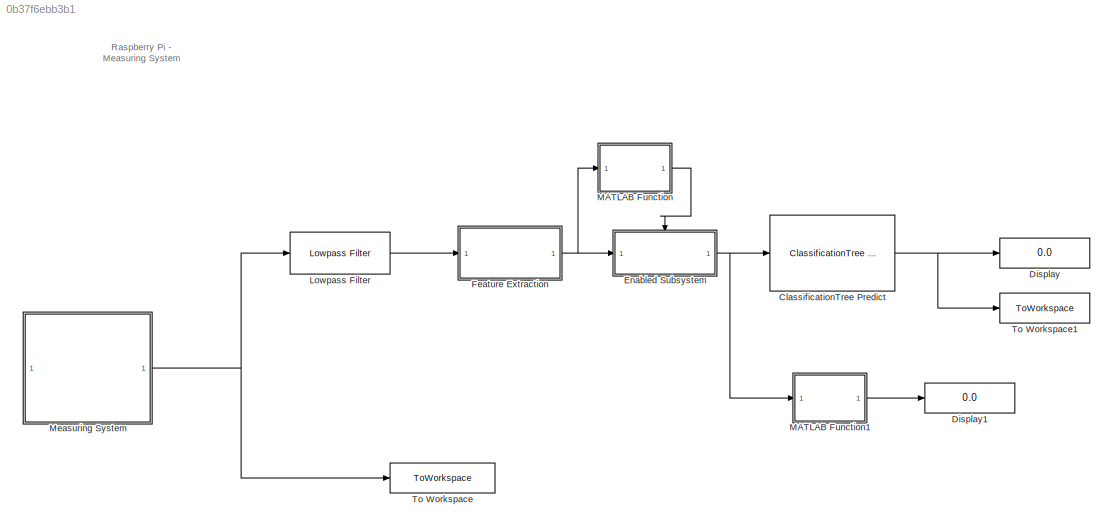
MODEL slx_0b37f6ebb3b1
KIND model
CONFIG AbsTol = auto
CONFIG EnableMultiTasking = on
CONFIG FixedStep = Ts
CONFIG MaxStep = auto
CONFIG MinStep = auto
CONFIG RelTol = 1e-3
CONFIG SampleTimeConstraint = Unconstrained
CONFIG SolverName = FixedStepAuto
CONFIG StartTime = 0.0
CONFIG StopTime = 120
BLOCK [Reference] ClassificationTree Predict  REF=statsLibrary/Classification/ClassificationTree Predict
  SourceBlock = statsLibrary/Classification/ClassificationTree Predict
  SourceType = ClassificationTree Predict
BLOCK [Display] Display
  Decimation = 1
BLOCK [Display] Display1
  Decimation = 1
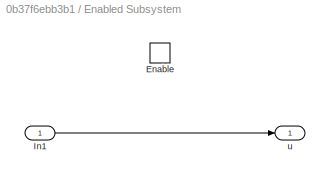
BLOCK [SubSystem] Enabled Subsystem
  TreatAsAtomicUnit = on
BLOCK [EnablePort] Enabled Subsystem/Enable
BLOCK [Inport] Enabled Subsystem/In1
BLOCK [Outport] Enabled Subsystem/u
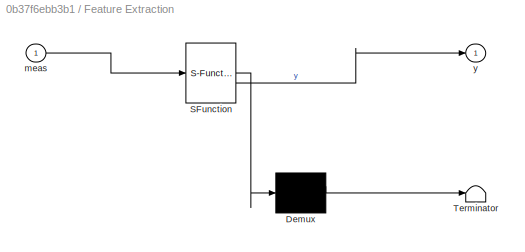
BLOCK [SubSystem] Feature Extraction
  ErrorFcn = Stateflow.Translate.translate
  PermitHierarchicalResolution = ExplicitOnly
  SFBlockType = MATLAB Function
  TreatAsAtomicUnit = on
BLOCK [Demux] Feature Extraction/ Demux 
  Outputs = 1
BLOCK [S-Function] Feature Extraction/ SFunction 
  EnableBusSupport = on
  FunctionName = sf_sfun
  PortCounts = [1 2]
  SFcnIsStateOwnerBlock = off
  SFunctionDeploymentMode = off
  Tag = Stateflow S-Function 2
BLOCK [Terminator] Feature Extraction/ Terminator 
BLOCK [Inport] Feature Extraction/meas
BLOCK [Outport] Feature Extraction/y
BLOCK [Reference] Lowpass Filter  REF=dspfdesign/Lowpass Filter
  SourceBlock = dspfdesign/Lowpass Filter
  SourceType = dsp.simulink.LowpassFilter
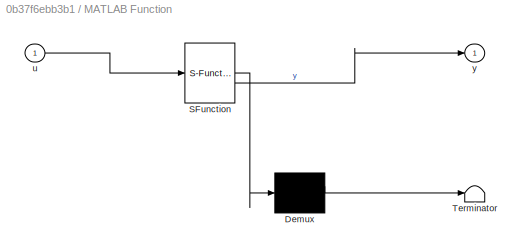
BLOCK [SubSystem] MATLAB Function
  ErrorFcn = Stateflow.Translate.translate
  PermitHierarchicalResolution = ExplicitOnly
  SFBlockType = MATLAB Function
  TreatAsAtomicUnit = on
BLOCK [Demux] MATLAB Function/ Demux 
  Outputs = 1
BLOCK [S-Function] MATLAB Function/ SFunction 
  EnableBusSupport = on
  FunctionName = sf_sfun
  PortCounts = [1 2]
  SFcnIsStateOwnerBlock = off
  SFunctionDeploymentMode = off
  Tag = Stateflow S-Function 1
BLOCK [Terminator] MATLAB Function/ Terminator 
BLOCK [Inport] MATLAB Function/u
BLOCK [Outport] MATLAB Function/y
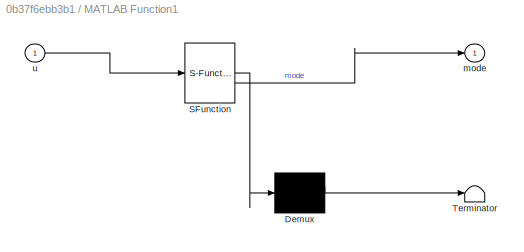
BLOCK [SubSystem] MATLAB Function1
  ErrorFcn = Stateflow.Translate.translate
  PermitHierarchicalResolution = ExplicitOnly
  SFBlockType = MATLAB Function
  TreatAsAtomicUnit = on
BLOCK [Demux] MATLAB Function1/ Demux 
  Outputs = 1
BLOCK [S-Function] MATLAB Function1/ SFunction 
  EnableBusSupport = on
  FunctionName = sf_sfun
  PortCounts = [1 2]
  SFcnIsStateOwnerBlock = off
  SFunctionDeploymentMode = off
  Tag = Stateflow S-Function 3
BLOCK [Terminator] MATLAB Function1/ Terminator 
BLOCK [Outport] MATLAB Function1/mode
  VectorParamsAs1DForOutWhenUnconnected = off
BLOCK [Inport] MATLAB Function1/u
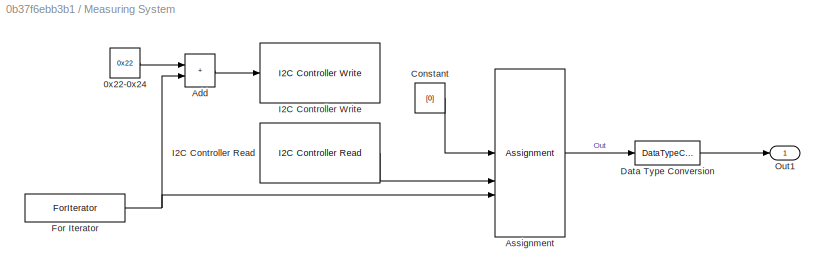
BLOCK [SubSystem] Measuring System
BLOCK [Constant] Measuring System/0x22-0x24
  OutDataTypeStr = uint8
  SampleTime = -1
  Value = 0x22
BLOCK [Sum] Measuring System/Add
  IconShape = rectangular
BLOCK [Assignment] Measuring System/Assignment
  DiagnosticForDimensions = Warning
  IndexMode = Zero-based
  IndexOptions = Index vector (port)
  Indices = 1
  OutputSizes = 1
BLOCK [Constant] Measuring System/Constant
  OutDataTypeStr = uint16
  SampleTime = -1
  Value = [0]
BLOCK [DataTypeConversion] Measuring System/Data Type Conversion
  OutDataTypeStr = double
  RndMeth = Floor
  SaturateOnIntegerOverflow = off
BLOCK [ForIterator] Measuring System/For Iterator
  IndexMode = Zero-based
  IterationLimit = 1
  IterationVariableDataType = uint8
BLOCK [Reference] Measuring System/I2C Controller Read  REF=raspberrypiCommlib/I2C Controller Read
  SourceBlock = raspberrypiCommlib/I2C Controller Read
  SourceType = codertarget.raspi.internal.I2CMasterRead
BLOCK [Reference] Measuring System/I2C Controller Write  REF=raspberrypiCommlib/I2C Controller Write
  SourceBlock = raspberrypiCommlib/I2C Controller Write
  SourceType = codertarget.raspi.internal.I2CMasterWrite
BLOCK [Outport] Measuring System/Out1
BLOCK [ToWorkspace] To Workspace
  FixptAsFi = on
  MaxDataPoints = inf
  SampleTime = -1
  Save2DSignal = 2-D array (concatenate along first dimension)
  SaveFormat = Structure With Time
  VariableName = accSensor_raw
BLOCK [ToWorkspace] To Workspace1
  FixptAsFi = on
  MaxDataPoints = inf
  SampleTime = -1
  SaveFormat = Structure With Time
  VariableName = labels
ANNOTATION (root): Raspberry Pi - Measuring System
NET ClassificationTree Predict:1 -> Display:1, To Workspace1:1
LINE Enabled Subsystem/In1:1 -> Enabled Subsystem/u:1
NET Enabled Subsystem:1 -> ClassificationTree Predict:1, MATLAB Function1:1
NET Feature Extraction:1 -> Enabled Subsystem:1, MATLAB Function:1
LINE Lowpass Filter:1 -> Feature Extraction:1
LINE MATLAB Function1:1 -> Display1:1
LINE MATLAB Function:1 -> Enabled Subsystem:enable
LINE Measuring System/0x22-0x24:1 -> Measuring System/Add:1
LINE Measuring System/Add:1 -> Measuring System/I2C Controller Write:1
LINE Measuring System/Assignment:1 -> Measuring System/Data Type Conversion:1
LINE Measuring System/Constant:1 -> Measuring System/Assignment:1
LINE Measuring System/Data Type Conversion:1 -> Measuring System/Out1:1
NET Measuring System/For Iterator:1 -> Measuring System/Add:2, Measuring System/Assignment:3
LINE Measuring System/I2C Controller Read:1 -> Measuring System/Assignment:2
NET Measuring System:1 -> Lowpass Filter:1, To Workspace:1
note: NET lines group one-source signal fan-out (src -> all destinations, sorted); 1:1 wires keep LINE
CHART Feature Extraction states=1 transitions=1
  STATE_LABEL 'eML_blk_kernel()'
  STATE_LABEL 'SCRIPT:\nfunction y = fcn(meas)\npersistent BufferData;\nif isempty(BufferData)\nBufferData = zeros(0,nargin);\nend\nBufferData = [BufferData;[meas]];\ny = zeros(1,61);\nBufferSize = 10001;\nBufferOverlap = 0;\nif size(BufferData,1) == BufferSize\nStartTime = 0;\nSamplingRate = 1e3;\nEndTime = (SamplingRate*BufferSize+StartTime-SamplingRate);\nmeas = BufferData(:,1);\nInputData = timetable(seconds(StartTime:Samp...<+249ch>'
CHART MATLAB Function1 states=1 transitions=1
  STATE_LABEL 'eML_blk_kernel()'
  STATE_LABEL 'SCRIPT:\nfunction mode = fcn(u)\n    classifier = loadLearnerForCoder("trainedModel5.mat");\n    mode = predict(classifier, u);'
CHART MATLAB Function states=1 transitions=1
  STATE_LABEL 'eML_blk_kernel()'
  STATE_LABEL 'SCRIPT:\nfunction y = fcn(u)\n    y = u(1)~=0 & u(2)~=0;\n'
CHART  states=0 transitions=0
CHART  states=0 transitions=0
CHART  states=0 transitions=0
